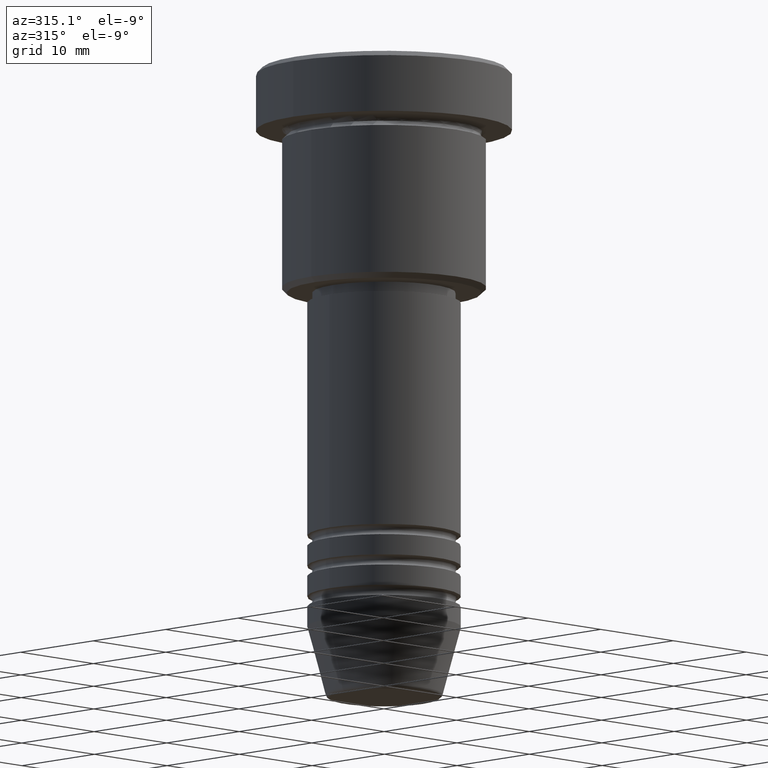
[diagram: clean part render]
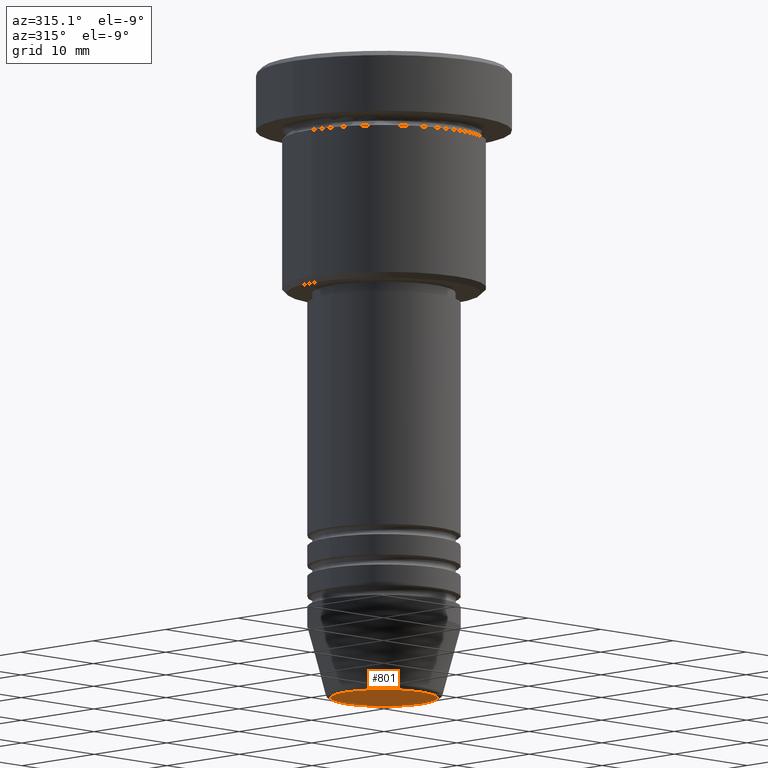
[diagram: same view with one face highlighted and labeled with its STEP entity id]
A machine part, auxiliary view. The second image highlights one B-rep face of the part: STEP entity #801.
In plain terms, the highlighted planar face has unit normal (0, -0, 1).
Its self-contained STEP definition (entity closure, byte-faithful):
#71 = AXIS2_PLACEMENT_3D ( 'NONE', #1124, #743, #648 ) ;
#87 = DIRECTION ( 'NONE',  ( 0.000000000000000000, 0.000000000000000000, -1.000000000000000000 ) ) ;
#197 = DIRECTION ( 'NONE',  ( 1.000000000000000000, 0.000000000000000000, 0.000000000000000000 ) ) ;
#296 = CARTESIAN_POINT ( 'NONE',  ( 0.000000000000000000, 0.000000000000000000, -62.00000000000000000 ) ) ;
#454 = AXIS2_PLACEMENT_3D ( 'NONE', #1178, #87, #627 ) ;
#468 = PLANE ( 'NONE',  #71 ) ;
#485 = ORIENTED_EDGE ( 'NONE', *, *, #926, .T. ) ;
#610 = AXIS2_PLACEMENT_3D ( 'NONE', #296, #663, #197 ) ;
#627 = DIRECTION ( 'NONE',  ( 1.000000000000000000, 0.000000000000000000, 0.000000000000000000 ) ) ;
#648 = DIRECTION ( 'NONE',  ( 1.000000000000000000, 0.000000000000000000, 0.000000000000000000 ) ) ;
#663 = DIRECTION ( 'NONE',  ( 0.000000000000000000, 0.000000000000000000, -1.000000000000000000 ) ) ;
#667 = VERTEX_POINT ( 'NONE', #809 ) ;
#675 = CIRCLE ( 'NONE', #610, 5.240692158992656502 ) ;
#686 = EDGE_CURVE ( 'NONE', #667, #707, #1049, .T. ) ;
#707 = VERTEX_POINT ( 'NONE', #896 ) ;
#743 = DIRECTION ( 'NONE',  ( 0.000000000000000000, -0.000000000000000000, 1.000000000000000000 ) ) ;
#754 = ORIENTED_EDGE ( 'NONE', *, *, #686, .T. ) ;
#801 = ADVANCED_FACE ( 'NONE', ( #927 ), #468, .F. ) ;
#809 = CARTESIAN_POINT ( 'NONE',  ( 5.240692158992656502, 0.000000000000000000, -62.00000000000000000 ) ) ;
#872 = EDGE_LOOP ( 'NONE', ( #754, #485 ) ) ;
#896 = CARTESIAN_POINT ( 'NONE',  ( -5.240692158992656502, 6.713726370671657473E-16, -62.00000000000000000 ) ) ;
#926 = EDGE_CURVE ( 'NONE', #707, #667, #675, .T. ) ;
#927 = FACE_OUTER_BOUND ( 'NONE', #872, .T. ) ;
#1049 = CIRCLE ( 'NONE', #454, 5.240692158992656502 ) ;
#1124 = CARTESIAN_POINT ( 'NONE',  ( 0.000000000000000000, 0.000000000000000000, -62.00000000000000000 ) ) ;
#1178 = CARTESIAN_POINT ( 'NONE',  ( 0.000000000000000000, 0.000000000000000000, -62.00000000000000000 ) ) ;